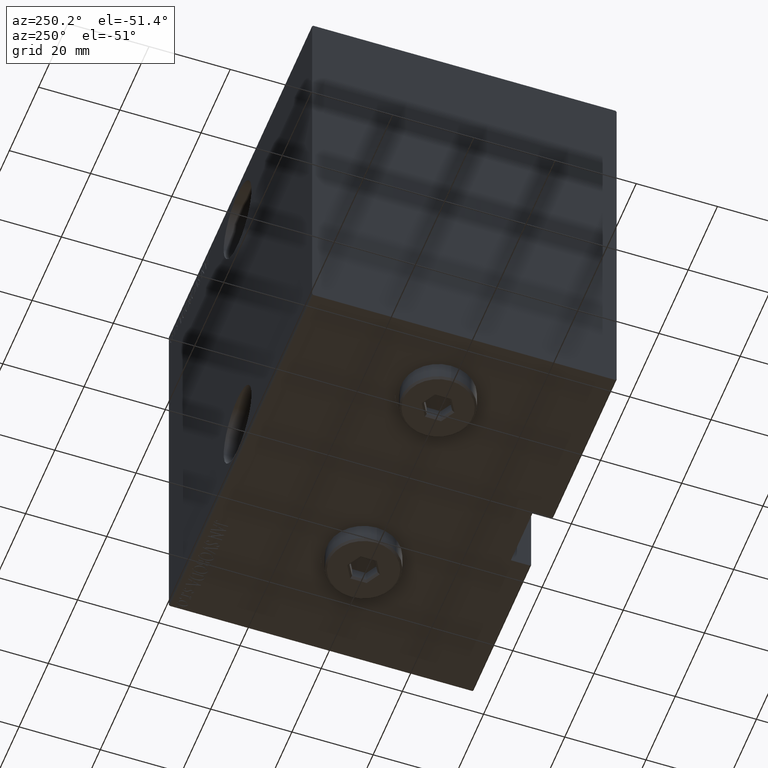
[diagram: clean part render]
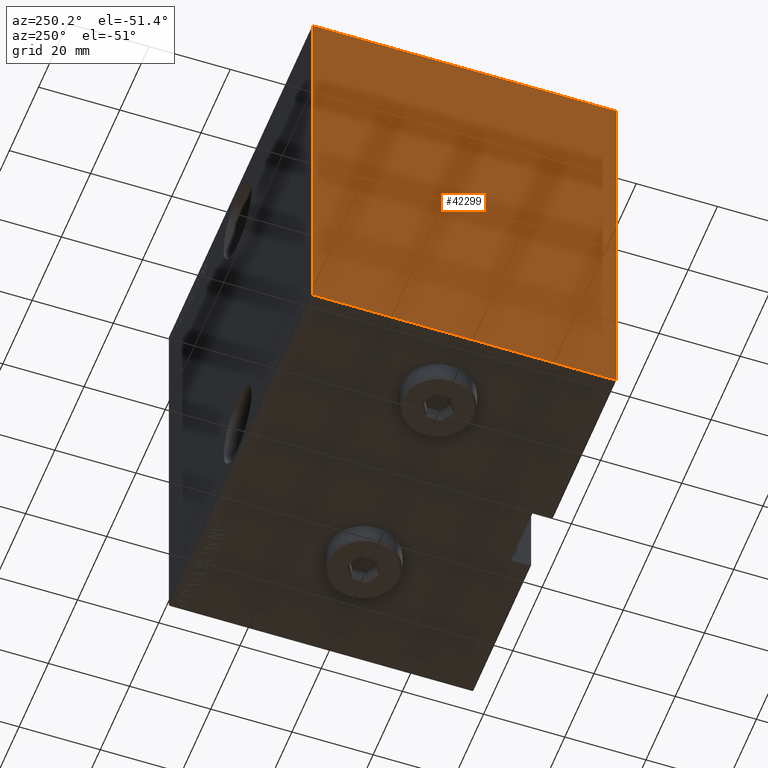
[diagram: same view with one face highlighted and labeled with its STEP entity id]
A machine part, auxiliary view. The second image highlights one B-rep face of the part: STEP entity #42299.
In plain terms, the highlighted planar face has unit normal (-1, 0, 0).
Its self-contained STEP definition (entity closure, byte-faithful):
#1149 = LINE ( 'NONE', #38761, #16064 ) ;
#1230 = VERTEX_POINT ( 'NONE', #43634 ) ;
#1302 = CARTESIAN_POINT ( 'NONE',  ( 98.00000000000000000, 37.49999999999999289, 49.70000000000000284 ) ) ;
#1846 = DIRECTION ( 'NONE',  ( 1.000000000000000000, 0.000000000000000000, 0.000000000000000000 ) ) ;
#2668 = EDGE_CURVE ( 'NONE', #27082, #21893, #11512, .T. ) ;
#2901 = DIRECTION ( 'NONE',  ( 0.000000000000000000, 1.000000000000000000, 9.251858538542970348E-17 ) ) ;
#3123 = DIRECTION ( 'NONE',  ( 0.000000000000000000, -1.387778780781445182E-16, 1.000000000000000000 ) ) ;
#3790 = LINE ( 'NONE', #17371, #10548 ) ;
#4655 = VECTOR ( 'NONE', #27239, 1000.000000000000114 ) ;
#5246 = DIRECTION ( 'NONE',  ( 0.000000000000000000, -1.000000000000000000, -1.850371707708594563E-16 ) ) ;
#5432 = ORIENTED_EDGE ( 'NONE', *, *, #14682, .T. ) ;
#7198 = AXIS2_PLACEMENT_3D ( 'NONE', #18765, #1846, #14981 ) ;
#8403 = VECTOR ( 'NONE', #19912, 1000.000000000000114 ) ;
#9486 = VECTOR ( 'NONE', #2901, 1000.000000000000000 ) ;
#10203 = EDGE_CURVE ( 'NONE', #1230, #10771, #3790, .T. ) ;
#10548 = VECTOR ( 'NONE', #37404, 1000.000000000000114 ) ;
#10771 = VERTEX_POINT ( 'NONE', #19939 ) ;
#11512 = LINE ( 'NONE', #31975, #12832 ) ;
#11853 = VERTEX_POINT ( 'NONE', #38053 ) ;
#11873 = VERTEX_POINT ( 'NONE', #1302 ) ;
#12166 = ORIENTED_EDGE ( 'NONE', *, *, #37278, .T. ) ;
#12807 = LINE ( 'NONE', #23031, #8403 ) ;
#12832 = VECTOR ( 'NONE', #5246, 1000.000000000000000 ) ;
#13164 = ORIENTED_EDGE ( 'NONE', *, *, #2668, .T. ) ;
#14682 = EDGE_CURVE ( 'NONE', #21893, #31170, #40594, .T. ) ;
#14981 = DIRECTION ( 'NONE',  ( 0.000000000000000000, 0.000000000000000000, -1.000000000000000000 ) ) ;
#15872 = FACE_OUTER_BOUND ( 'NONE', #37640, .T. ) ;
#16064 = VECTOR ( 'NONE', #41469, 1000.000000000000000 ) ;
#16216 = CARTESIAN_POINT ( 'NONE',  ( 98.00000000000000000, -43.59999999999999432, -43.59999999999999432 ) ) ;
#17371 = CARTESIAN_POINT ( 'NONE',  ( 98.00000000000000000, 43.59999999999956088, -43.60000000000057696 ) ) ;
#18735 = VECTOR ( 'NONE', #3123, 1000.000000000000000 ) ;
#18765 = CARTESIAN_POINT ( 'NONE',  ( 98.00000000000000000, 0.000000000000000000, 0.000000000000000000 ) ) ;
#19912 = DIRECTION ( 'NONE',  ( -0.000000000000000000, -0.7071067811865392461, 0.7071067811865556774 ) ) ;
#19939 = CARTESIAN_POINT ( 'NONE',  ( 98.00000000000000000, 37.50000000000000711, -49.70000000000000284 ) ) ;
#20334 = CARTESIAN_POINT ( 'NONE',  ( 98.00000000000000000, -43.59999999999956088, 43.60000000000057696 ) ) ;
#21155 = EDGE_CURVE ( 'NONE', #31170, #11853, #1149, .T. ) ;
#21893 = VERTEX_POINT ( 'NONE', #31059 ) ;
#23031 = CARTESIAN_POINT ( 'NONE',  ( 98.00000000000000000, 43.60000000000042775, 43.59999999999941878 ) ) ;
#23503 = ORIENTED_EDGE ( 'NONE', *, *, #27898, .T. ) ;
#25894 = PLANE ( 'NONE',  #7198 ) ;
#25978 = CARTESIAN_POINT ( 'NONE',  ( 98.00000000000000000, -37.19999999999997442, -50.00000000000001421 ) ) ;
#27082 = VERTEX_POINT ( 'NONE', #30148 ) ;
#27239 = DIRECTION ( 'NONE',  ( 0.000000000000000000, -0.7071067811865556774, -0.7071067811865392461 ) ) ;
#27870 = EDGE_CURVE ( 'NONE', #29146, #1230, #33417, .T. ) ;
#27898 = EDGE_CURVE ( 'NONE', #10771, #11873, #33636, .T. ) ;
#29068 = VECTOR ( 'NONE', #29794, 1000.000000000000114 ) ;
#29146 = VERTEX_POINT ( 'NONE', #25978 ) ;
#29359 = LINE ( 'NONE', #16216, #29068 ) ;
#29794 = DIRECTION ( 'NONE',  ( -0.000000000000000000, 0.7071067811865474617, -0.7071067811865474617 ) ) ;
#30148 = CARTESIAN_POINT ( 'NONE',  ( 98.00000000000000000, 37.19999999999998153, 50.00000000000001421 ) ) ;
#31059 = CARTESIAN_POINT ( 'NONE',  ( 98.00000000000000000, -37.19999999999996732, 50.00000000000000000 ) ) ;
#31170 = VERTEX_POINT ( 'NONE', #31659 ) ;
#31659 = CARTESIAN_POINT ( 'NONE',  ( 98.00000000000000000, -37.50000000000000000, 49.69999999999998153 ) ) ;
#31975 = CARTESIAN_POINT ( 'NONE',  ( 98.00000000000000000, 37.49999999999999289, 50.00000000000001421 ) ) ;
#33026 = ORIENTED_EDGE ( 'NONE', *, *, #10203, .T. ) ;
#33417 = LINE ( 'NONE', #43660, #9486 ) ;
#33636 = LINE ( 'NONE', #37409, #18735 ) ;
#35413 = EDGE_CURVE ( 'NONE', #11873, #27082, #12807, .T. ) ;
#36210 = ORIENTED_EDGE ( 'NONE', *, *, #27870, .T. ) ;
#37278 = EDGE_CURVE ( 'NONE', #11853, #29146, #29359, .T. ) ;
#37404 = DIRECTION ( 'NONE',  ( -0.000000000000000000, 0.7071067811865556774, 0.7071067811865392461 ) ) ;
#37409 = CARTESIAN_POINT ( 'NONE',  ( 98.00000000000000000, 37.50000000000000711, -50.00000000000000711 ) ) ;
#37640 = EDGE_LOOP ( 'NONE', ( #36210, #33026, #23503, #42839, #13164, #5432, #37641, #12166 ) ) ;
#37641 = ORIENTED_EDGE ( 'NONE', *, *, #21155, .T. ) ;
#38053 = CARTESIAN_POINT ( 'NONE',  ( 98.00000000000000000, -37.50000000000000000, -49.69999999999999574 ) ) ;
#38761 = CARTESIAN_POINT ( 'NONE',  ( 98.00000000000000000, -37.50000000000000000, 50.00000000000000000 ) ) ;
#40594 = LINE ( 'NONE', #20334, #4655 ) ;
#41469 = DIRECTION ( 'NONE',  ( 0.000000000000000000, 0.000000000000000000, -1.000000000000000000 ) ) ;
#42299 = ADVANCED_FACE ( 'NONE', ( #15872 ), #25894, .T. ) ;
#42839 = ORIENTED_EDGE ( 'NONE', *, *, #35413, .T. ) ;
#43634 = CARTESIAN_POINT ( 'NONE',  ( 98.00000000000000000, 37.19999999999998863, -50.00000000000000711 ) ) ;
#43660 = CARTESIAN_POINT ( 'NONE',  ( 98.00000000000000000, -37.50000000000000000, -50.00000000000001421 ) ) ;